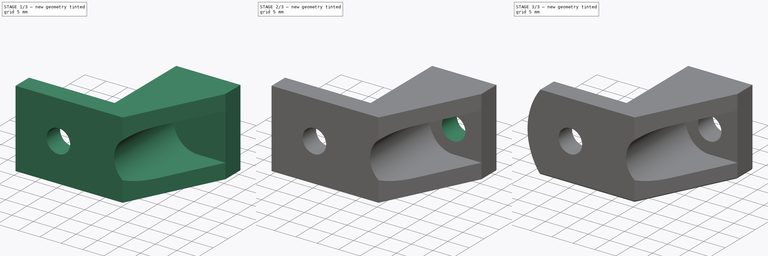
[diagram: build sequence overview — one tinted view per stage of 3, left to right]
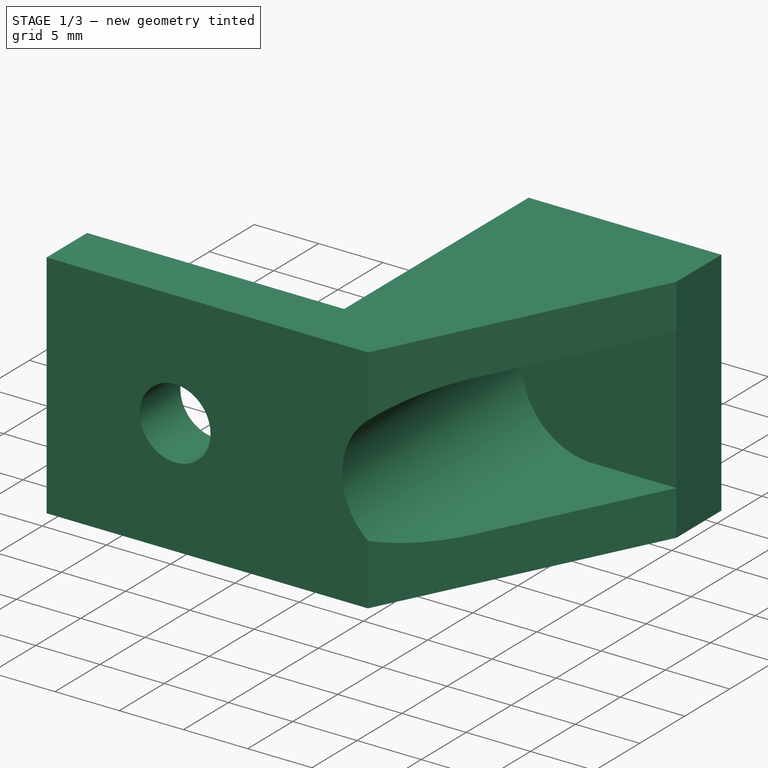
[diagram: stage 1 of 3 — iso view after this stage's code; geometry added in this stage tinted green]
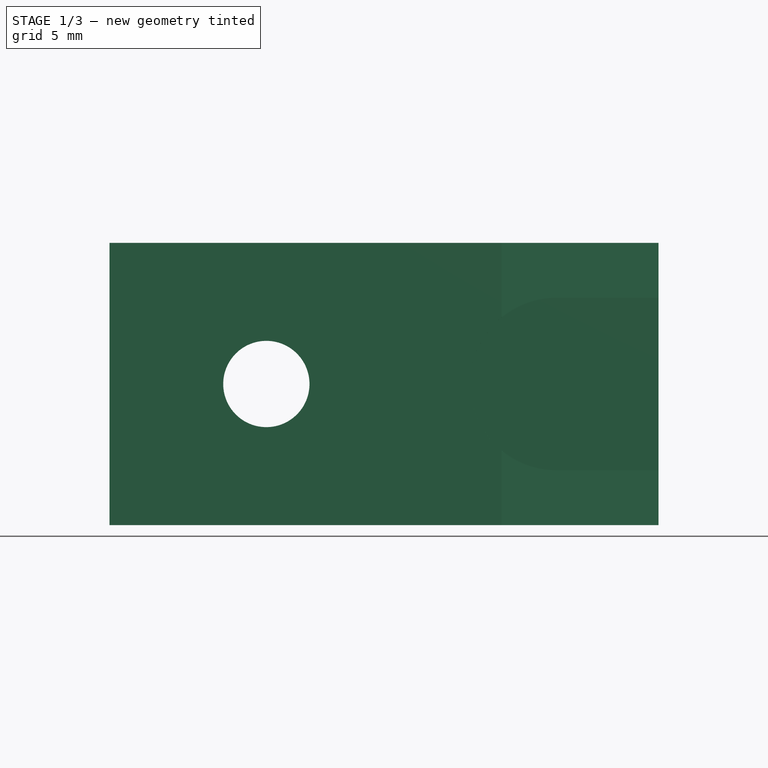
[diagram: stage 1 of 3 — front view after this stage's code; geometry added in this stage tinted green]
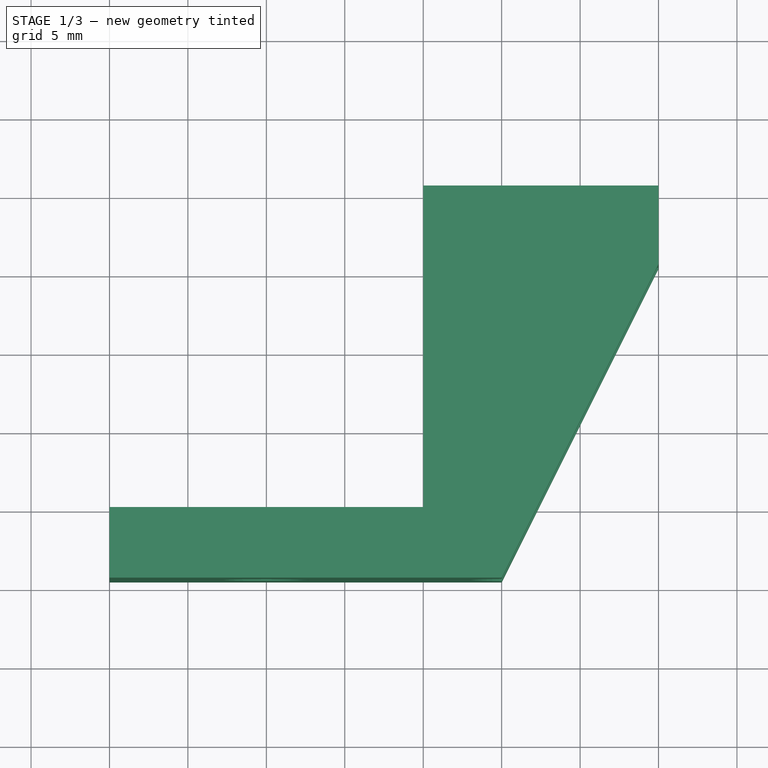
[diagram: stage 1 of 3 — top view after this stage's code; geometry added in this stage tinted green]
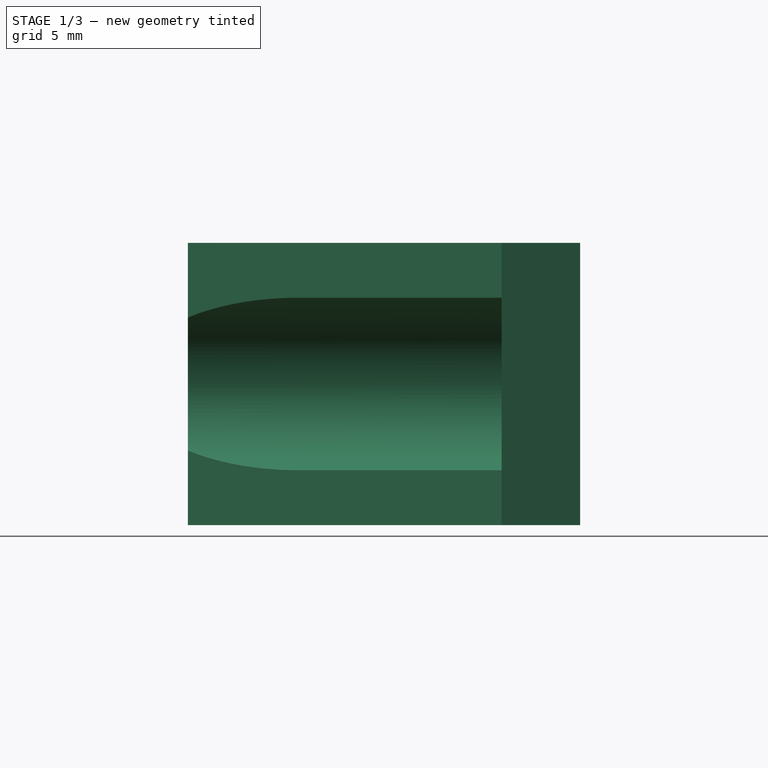
[diagram: stage 1 of 3 — right view after this stage's code; geometry added in this stage tinted green]
FCSTD DOCUMENT  (FreeCAD 0.16R5861 (Git))
Label: electronics_case_mount_v2.0
License: All rights reserved
LicenseURL: http://en.wikipedia.org/wiki/All_rights_reserved
objects: Sketcher::SketchObject×4, PartDesign::Pocket×3, PartDesign::Pad×1, PartDesign::Fillet×1
note: 13 computed .brp shape members not serialized (recipe doc carries the construction recipe); baked Part::Feature solids carry a one-line shape summary decoded from their .brp

FEATURE [Sketcher::SketchObject] Sketch
  sketch-geometry (7):
    g0: LineSegment StartX=0 StartY=0 StartZ=0 EndX=-20 EndY=0 EndZ=0
    g1: LineSegment StartX=-20 StartY=0 StartZ=0 EndX=-20 EndY=-4.5 EndZ=0
    g2: LineSegment StartX=-20 StartY=-4.5 StartZ=0 EndX=5 EndY=-4.5 EndZ=0
    g3: LineSegment StartX=5 StartY=-4.5 StartZ=0 EndX=15 EndY=15.5 EndZ=0
    g4: LineSegment StartX=15 StartY=15.5 StartZ=0 EndX=15 EndY=20.5 EndZ=0
    g5: LineSegment StartX=15 StartY=20.5 StartZ=0 EndX=0 EndY=20.5 EndZ=0
    g6: LineSegment StartX=0 StartY=20.5 StartZ=0 EndX=0 EndY=0 EndZ=0
  constraints (20):
    c: Coincident(g-1,g0)
    c: PointOnObject(g0,g-1)
    c: Coincident(g0,g1)
    c: Vertical(g1)
    c: Coincident(g1,g2)
    c: Horizontal(g2)
    c: Coincident(g2,g3)
    c: Coincident(g3,g4)
    c: Vertical(g4)
    c: Coincident(g4,g5)
    c: PointOnObject(g5,g-2)
    c: Horizontal(g5)
    c: Coincident(g5,g6)
    c: Coincident(g6,g0)
    c: DistanceY(g4,g2) = -25
    c: DistanceY(g1) = -4.5
    c: DistanceX(g4,g1) = -35
    c: DistanceX(g5) = -15
    c: DistanceY(g4) = 5
    c: DistanceX(g-1,g2) = 5
FEATURE [PartDesign::Pad] Pad
  Length = 18
  Length2 = 100
  Sketch = -> Sketch
  Type = 0
FEATURE [Sketcher::SketchObject] Sketch001
  ExternalGeometry = -> [Pad]
  Placement = pos=(0,-4.5,0) rot=(1,0,0;1.5708rad)
  Support = -> Pad [Face3]
  sketch-geometry (9):
    g0: Circle CenterX=-10 CenterY=9 CenterZ=0 NormalX=0 NormalY=0 NormalZ=1 Radius=2.75
    g1: ArcOfCircle CenterX=15 CenterY=9 CenterZ=0 NormalX=0 NormalY=0 NormalZ=1 Radius=5.5 StartAngle=4.71239 EndAngle=7.85398
    g2: ArcOfCircle CenterX=8.5 CenterY=9 CenterZ=0 NormalX=0 NormalY=0 NormalZ=1 Radius=5.5 StartAngle=1.5708 EndAngle=4.71239
    g3: LineSegment StartX=15 StartY=14.5 StartZ=0 EndX=8.5 EndY=14.5 EndZ=0
    g4: LineSegment StartX=15 StartY=3.5 StartZ=0 EndX=8.5 EndY=3.5 EndZ=0
    g5: LineSegment [constr] StartX=-20 StartY=0 StartZ=0 EndX=-10 EndY=9 EndZ=0
    g6: LineSegment [constr] StartX=-10 StartY=9 StartZ=0 EndX=-20 EndY=18 EndZ=0
    g7: LineSegment [constr] StartX=15 StartY=18 StartZ=0 EndX=8.5 EndY=9 EndZ=0
    g8: LineSegment [constr] StartX=8.5 StartY=9 StartZ=0 EndX=15 EndY=0 EndZ=0
  constraints (21):
    c: Tangent(g1,g4) = 1.5708
    c: Tangent(g1,g3) = -1.5708
    c: Tangent(g3,g2) = -1.5708
    c: Tangent(g4,g2) = 1.5708
    c: Horizontal(g3)
    c: Equal(g1,g2)
    c: PointOnObject(g1,g-3)
    c: Coincident(g-4,g5)
    c: Coincident(g5,g0)
    c: Coincident(g5,g6)
    c: Coincident(g6,g-4)
    c: Coincident(g-3,g7)
    c: Coincident(g7,g2)
    c: Coincident(g7,g8)
    c: Coincident(g8,g-3)
    c: Equal(g8,g7)
    c: Equal(g6,g5)
    c: Radius(g0) = 2.75
    c: Radius(g2) = 5.5
    c: DistanceX(g2,g7) = 6.5
    c: DistanceX(g0,g6) = -10
FEATURE [PartDesign::Pocket] Pocket
  Length = 20
  Sketch = -> Sketch001
  Type = 0
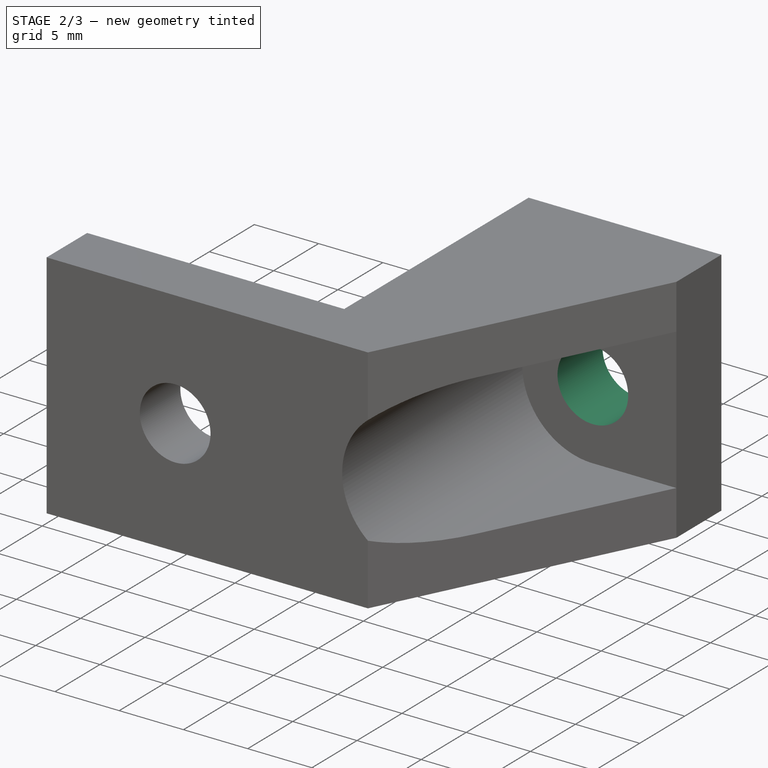
[diagram: stage 2 of 3 — iso view after this stage's code; geometry added in this stage tinted green]
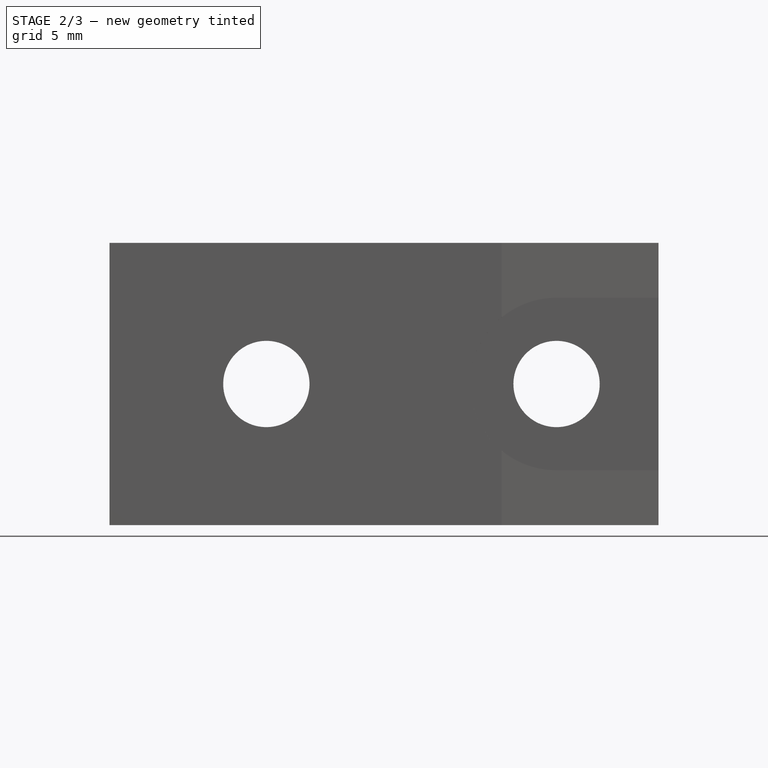
[diagram: stage 2 of 3 — front view after this stage's code; geometry added in this stage tinted green]
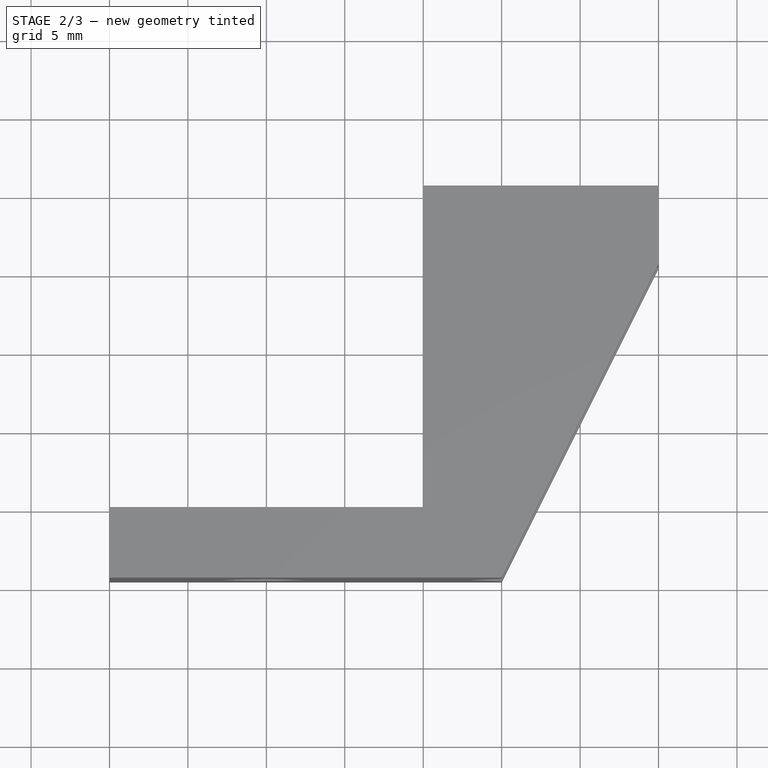
[diagram: stage 2 of 3 — top view after this stage's code; geometry added in this stage tinted green]
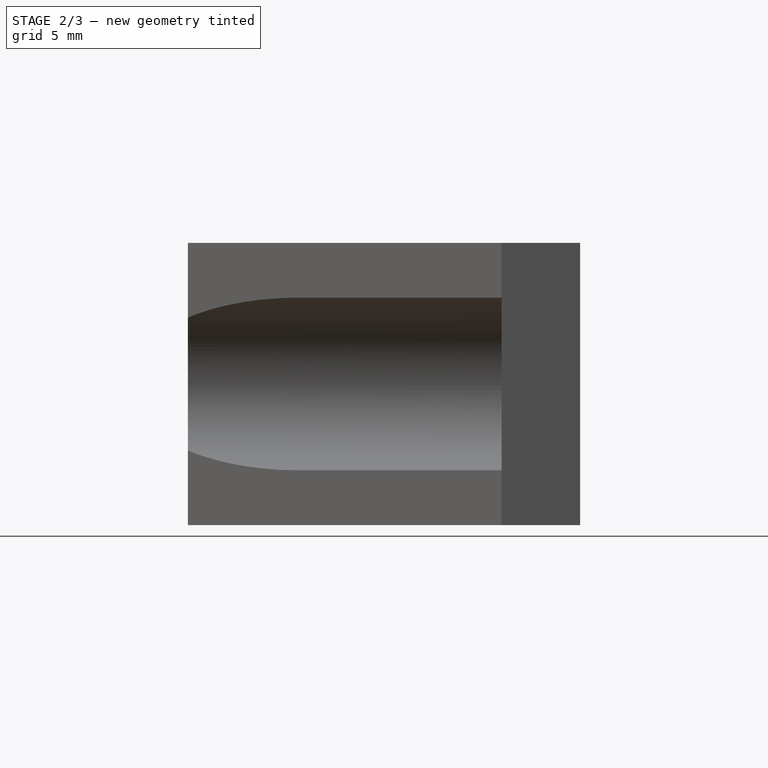
[diagram: stage 2 of 3 — right view after this stage's code; geometry added in this stage tinted green]
FEATURE [Sketcher::SketchObject] Sketch002
  ExternalGeometry = -> [Pocket]
  Placement = pos=(0,15.5,0) rot=(1,0,0;1.5708rad)
  Support = -> Pocket [Face14]
  sketch-geometry (1):
    g0: Circle CenterX=8.5 CenterY=9 CenterZ=0 NormalX=0 NormalY=0 NormalZ=1 Radius=2.75
  constraints (2):
    c: Coincident(g0,g-3)
    c: Radius(g0) = 2.75
FEATURE [PartDesign::Pocket] Pocket001
  Length = 5
  Sketch = -> Sketch002
  Type = 0
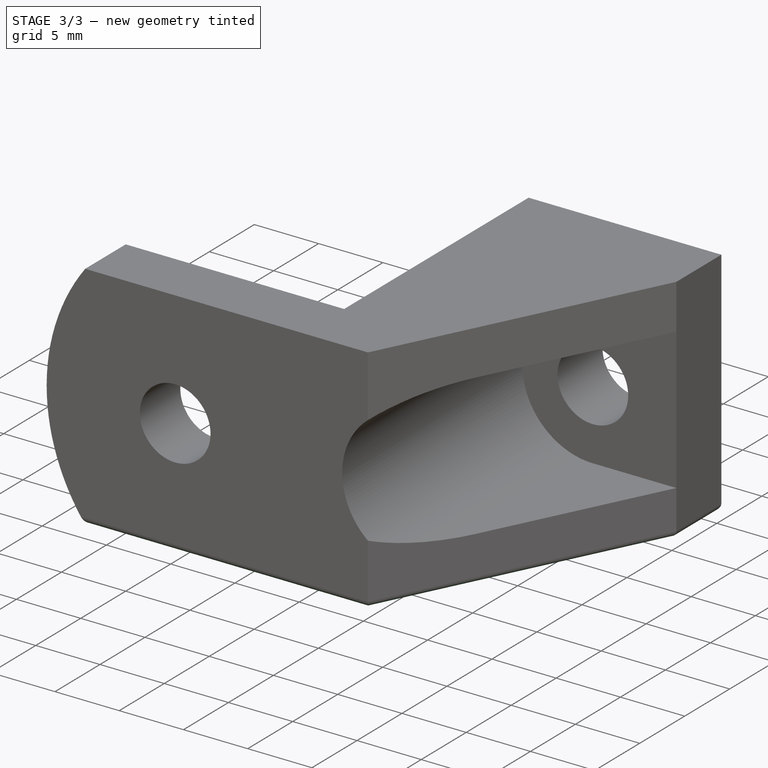
[diagram: stage 3 of 3 — iso view after this stage's code; geometry added in this stage tinted green]
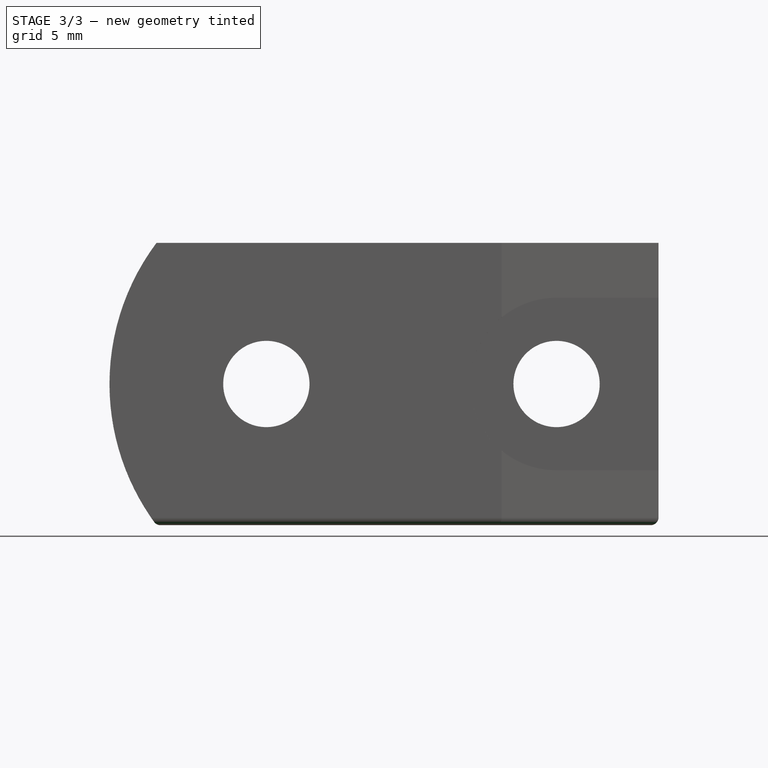
[diagram: stage 3 of 3 — front view after this stage's code; geometry added in this stage tinted green]
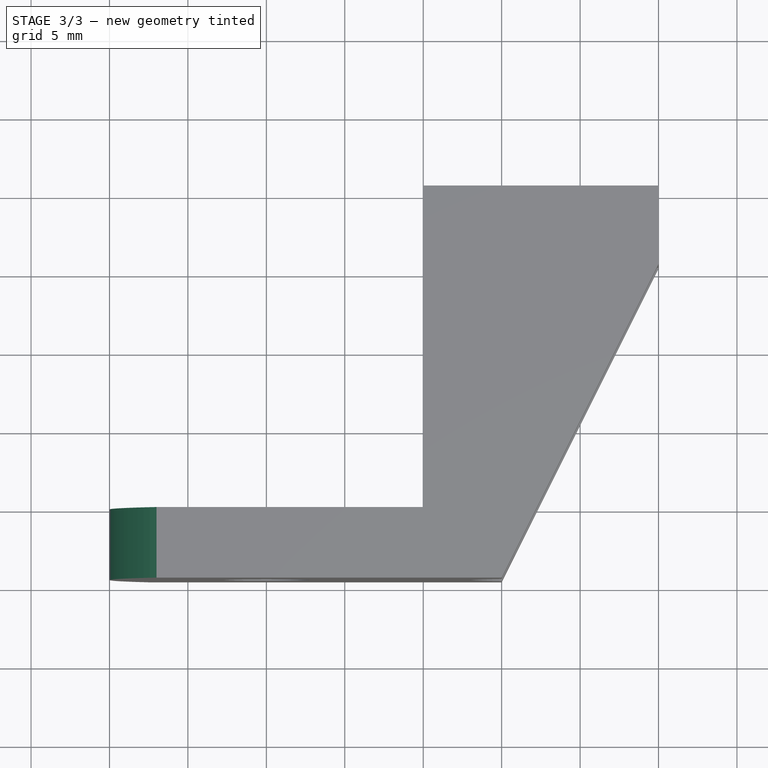
[diagram: stage 3 of 3 — top view after this stage's code; geometry added in this stage tinted green]
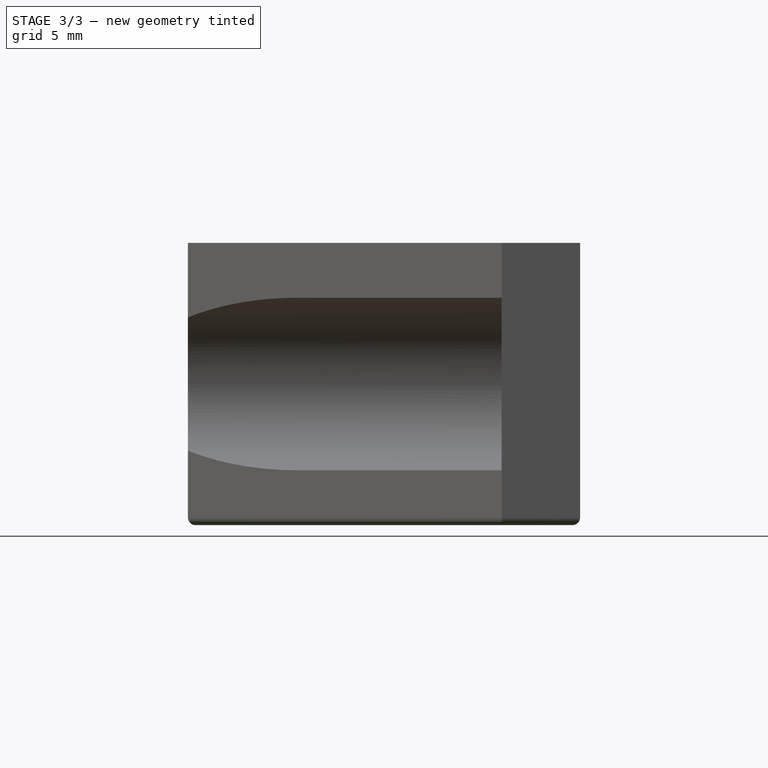
[diagram: stage 3 of 3 — right view after this stage's code; geometry added in this stage tinted green]
FEATURE [Sketcher::SketchObject] Sketch003
  ExternalGeometry = -> [Pocket001]
  Placement = pos=(0,-4.5,0) rot=(1,0,0;1.5708rad)
  Support = -> Pocket001 [Face8]
  sketch-geometry (4):
    g0: ArcOfCircle CenterX=-5 CenterY=9 CenterZ=0 NormalX=0 NormalY=0 NormalZ=1 Radius=15 StartAngle=2.49809 EndAngle=3.78509
    g1: LineSegment StartX=-17 StartY=18 StartZ=0 EndX=-27 EndY=18 EndZ=0
    g2: LineSegment StartX=-27 StartY=18 StartZ=0 EndX=-27 EndY=0 EndZ=0
    g3: LineSegment StartX=-27 StartY=0 StartZ=0 EndX=-17 EndY=0 EndZ=0
  constraints (13):
    c: PointOnObject(g0,g-4)
    c: PointOnObject(g0,g-1)
    c: Tangent(g-3,g0)
    c: Coincident(g0,g1)
    c: Coincident(g1,g2)
    c: PointOnObject(g2,g-1)
    c: Vertical(g2)
    c: Coincident(g2,g3)
    c: Coincident(g3,g0)
    c: Equal(g3,g1)
    c: Horizontal(g1)
    c: DistanceX(g3) = 10
    c: Radius(g0) = 15
FEATURE [PartDesign::Pocket] Pocket002
  Length = 5
  Sketch = -> Sketch003
  Type = 0
FEATURE [PartDesign::Fillet] Fillet
  Base = -> Pocket002 [Edge1,Edge7,Edge8,Edge9,Edge10,Edge11,Edge12]
  Radius = 0.5
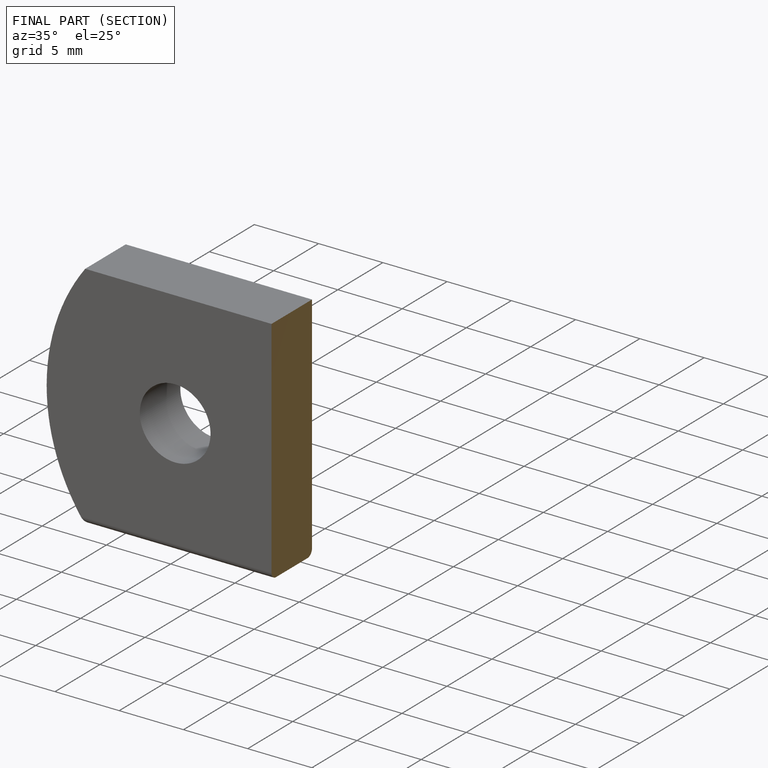
[diagram: finished part — half-section view (interior)]
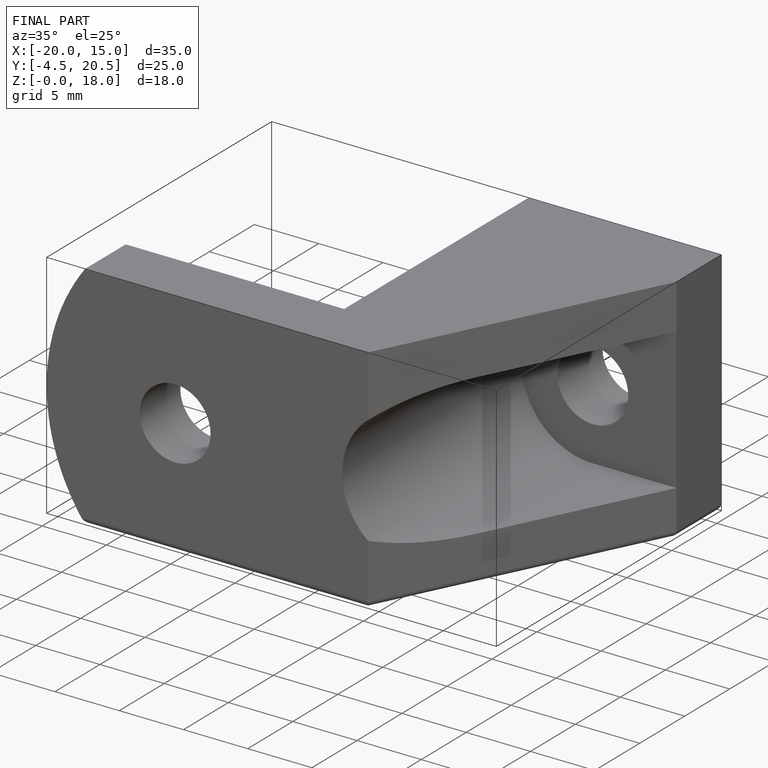
[diagram: finished part — iso view with bounding-box wireframe]
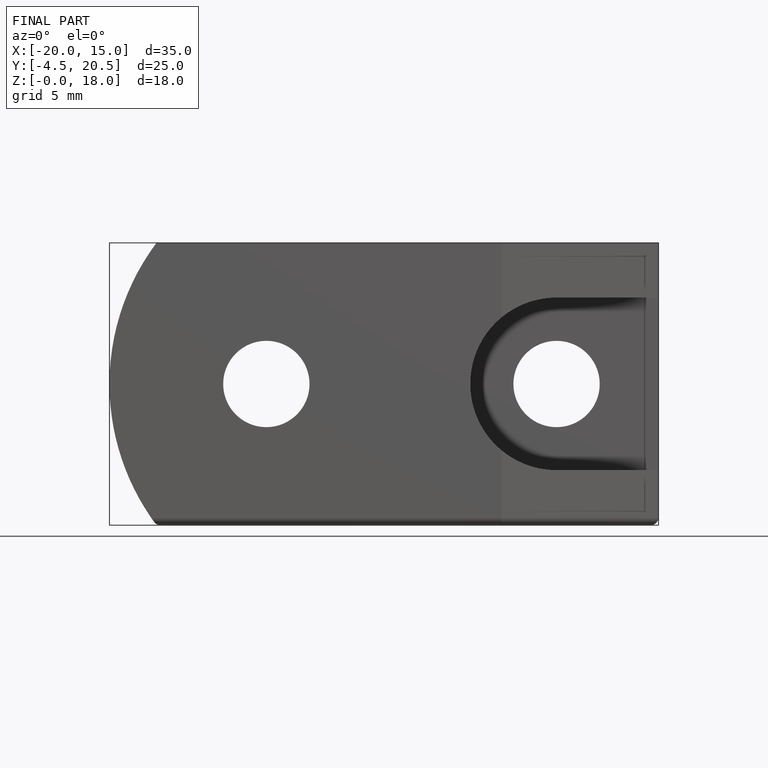
[diagram: finished part — front view with bounding-box wireframe]
